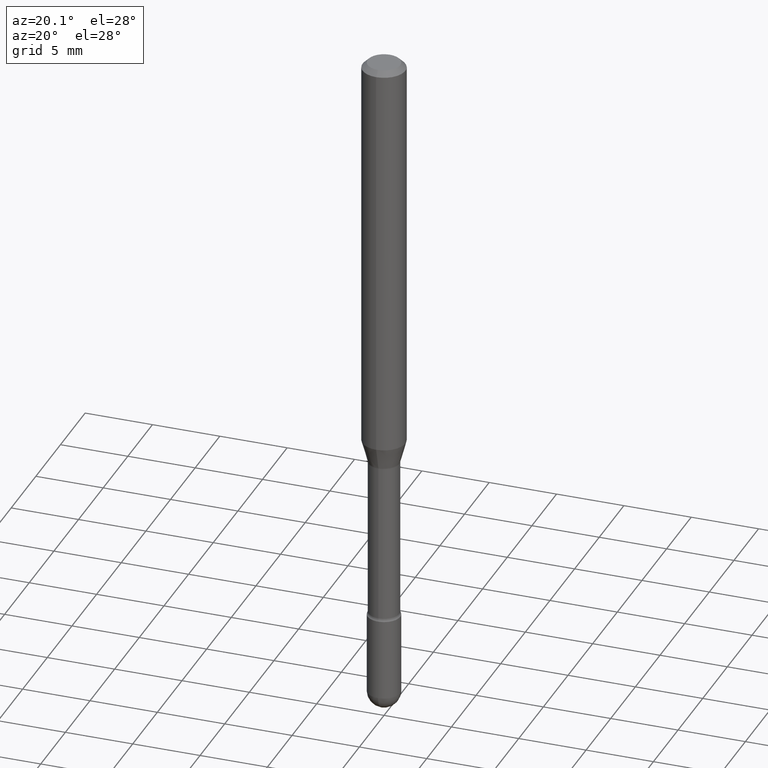
[diagram: clean part render]
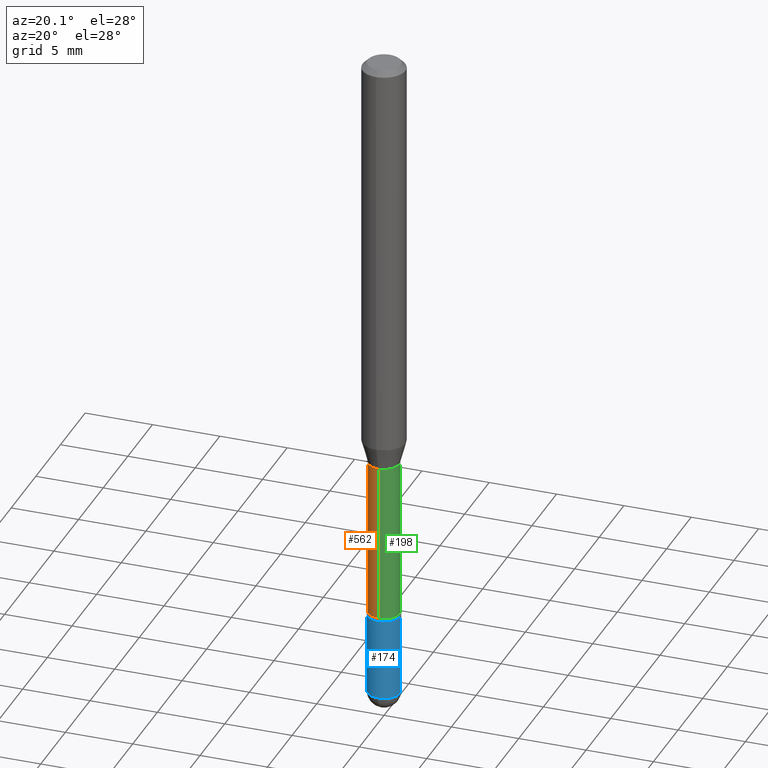
[diagram: same view with three faces highlighted in distinct colors, each labeled with its STEP entity id]
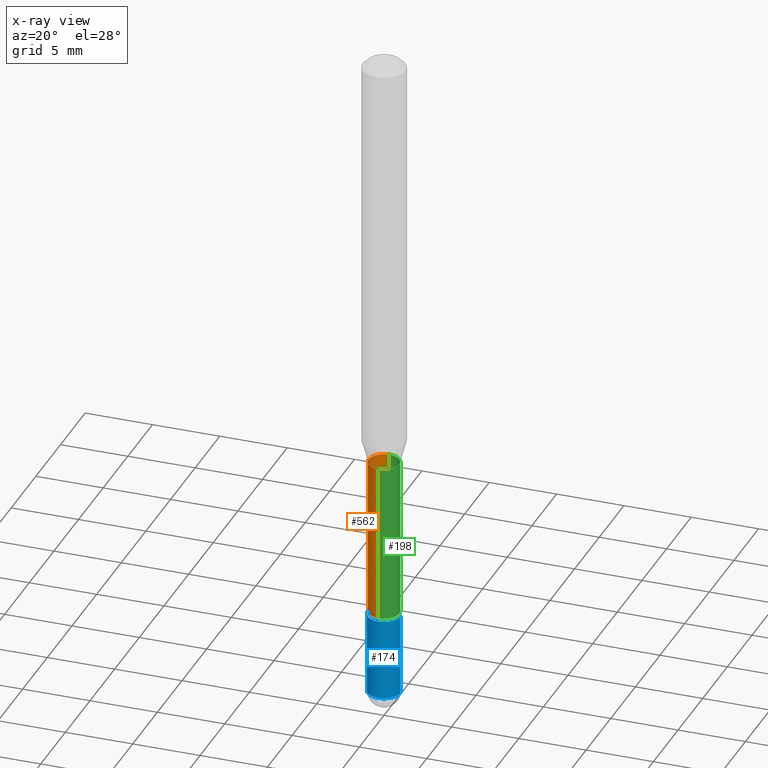
[diagram: x-ray of the same camera — body ghosted, the three highlighted faces saturated]
A machine part, auxiliary view with three faces highlighted in distinct colors.
The next image is the same camera in x-ray (body ghosted, the three faces saturated) — at least one of them is partly hidden behind the body in this view.
Their STEP definitions:

[orange] entity #562 — the highlighted cylindrical surface (edge-blend (fillet) strip) has radius 1.1341 mm, axis along (-0, 0, 1).
#2 = DIRECTION ( 'NONE',  ( -6.982962677686265922E-15, -1.000000000000000000, 3.491509824358550221E-15 ) ) ;
#17 = CARTESIAN_POINT ( 'NONE',  ( -3.117892835586504621E-16, -0.04465000000000601821, -1.706203551853162415 ) ) ;
#55 = DIRECTION ( 'NONE',  ( -6.982962677686265922E-15, -1.000000000000000000, 6.118360568117042054E-15 ) ) ;
#58 = ORIENTED_EDGE ( 'NONE', *, *, #405, .T. ) ;
#60 = CIRCLE ( 'NONE', #163, 0.04465000000000006464 ) ;
#82 = DIRECTION ( 'NONE',  ( -2.445448914856043624E-29, 3.491509824358551010E-15, 1.000000000000000000 ) ) ;
#91 = DIRECTION ( 'NONE',  ( -2.445448914856043344E-29, 3.491509824358551010E-15, 1.000000000000000000 ) ) ;
#98 = CARTESIAN_POINT ( 'NONE',  ( 3.037185896281941653E-29, -4.336367172035518711E-15, -1.241974787463810959 ) ) ;
#101 = VERTEX_POINT ( 'NONE', #258 ) ;
#102 = DIRECTION ( 'NONE',  ( -2.445448914856043624E-29, 3.491509824358551010E-15, 1.000000000000000000 ) ) ;
#123 = CARTESIAN_POINT ( 'NONE',  ( 3.172573315168849457E-16, 0.04465000000000003688, 3.221774852336366388E-16 ) ) ;
#128 = EDGE_CURVE ( 'NONE', #513, #136, #60, .T. ) ;
#136 = VERTEX_POINT ( 'NONE', #17 ) ;
#163 = AXIS2_PLACEMENT_3D ( 'NONE', #292, #102, #55 ) ;
#176 = CYLINDRICAL_SURFACE ( 'NONE', #319, 0.04465000000000003688 ) ;
#229 = DIRECTION ( 'NONE',  ( -2.445448914856043624E-29, 3.491509824358551010E-15, 1.000000000000000000 ) ) ;
#258 = CARTESIAN_POINT ( 'NONE',  ( -3.117892835586614568E-16, -0.04465000000000434593, -1.241974787463810737 ) ) ;
#265 = CARTESIAN_POINT ( 'NONE',  ( 3.172573315169266568E-16, 0.04464999999999567232, -1.241974787463811181 ) ) ;
#292 = CARTESIAN_POINT ( 'NONE',  ( 4.172433624402844054E-29, -5.957226463650771569E-15, -1.706203551853162859 ) ) ;
#299 = VECTOR ( 'NONE', #476, 39.37007874015748143 ) ;
#304 = CARTESIAN_POINT ( 'NONE',  ( 3.273825655015081526E-16, 0.04464999999999410413, -1.706203551853163081 ) ) ;
#318 = CARTESIAN_POINT ( 'NONE',  ( -3.117892835586920252E-16, -0.04465000000000003688, 6.339693125488554876E-16 ) ) ;
#319 = AXIS2_PLACEMENT_3D ( 'NONE', #396, #229, #2 ) ;
#326 = ORIENTED_EDGE ( 'NONE', *, *, #128, .T. ) ;
#347 = DIRECTION ( 'NONE',  ( -6.982962677686265922E-15, -1.000000000000000000, 6.118360568117049942E-15 ) ) ;
#372 = ORIENTED_EDGE ( 'NONE', *, *, #498, .F. ) ;
#389 = FACE_OUTER_BOUND ( 'NONE', #480, .T. ) ;
#396 = CARTESIAN_POINT ( 'NONE',  ( -1.169113584055446105E-44, 1.669184350826100908E-30, 4.780733988912460139E-16 ) ) ;
#397 = VERTEX_POINT ( 'NONE', #265 ) ;
#405 = EDGE_CURVE ( 'NONE', #136, #101, #564, .T. ) ;
#443 = LINE ( 'NONE', #123, #299 ) ;
#449 = AXIS2_PLACEMENT_3D ( 'NONE', #98, #82, #347 ) ;
#476 = DIRECTION ( 'NONE',  ( -2.445448914856043344E-29, 3.491509824358551010E-15, 1.000000000000000000 ) ) ;
#480 = EDGE_LOOP ( 'NONE', ( #527, #326, #58, #372 ) ) ;
#498 = EDGE_CURVE ( 'NONE', #397, #101, #538, .T. ) ;
#512 = VECTOR ( 'NONE', #91, 39.37007874015748143 ) ;
#513 = VERTEX_POINT ( 'NONE', #304 ) ;
#527 = ORIENTED_EDGE ( 'NONE', *, *, #533, .F. ) ;
#533 = EDGE_CURVE ( 'NONE', #513, #397, #443, .T. ) ;
#538 = CIRCLE ( 'NONE', #449, 0.04465000000000000913 ) ;
#562 = ADVANCED_FACE ( 'NONE', ( #389 ), #176, .T. ) ;
#564 = LINE ( 'NONE', #318, #512 ) ;

[blue] entity #174 — the highlighted cylindrical surface (edge-blend (fillet) strip) has radius 1.2065 mm, axis along (-0, 0, 1).
#11 = DIRECTION ( 'NONE',  ( -2.445468806185136597E-29, 3.491481338843145583E-15, 1.000000000000000000 ) ) ;
#13 = VERTEX_POINT ( 'NONE', #221 ) ;
#14 = EDGE_CURVE ( 'NONE', #293, #132, #387, .T. ) ;
#26 = AXIS2_PLACEMENT_3D ( 'NONE', #232, #39, #223 ) ;
#39 = DIRECTION ( 'NONE',  ( -2.445468806185136597E-29, 3.491481338843145583E-15, 1.000000000000000000 ) ) ;
#41 = ORIENTED_EDGE ( 'NONE', *, *, #300, .T. ) ;
#47 = AXIS2_PLACEMENT_3D ( 'NONE', #490, #56, #556 ) ;
#56 = DIRECTION ( 'NONE',  ( -2.445468806185136597E-29, 3.491481338843145583E-15, 1.000000000000000000 ) ) ;
#72 = EDGE_CURVE ( 'NONE', #293, #280, #220, .T. ) ;
#77 = CARTESIAN_POINT ( 'NONE',  ( 0.04750000000000000749, -3.316907271900977082E-16, 2.316183968503069432E-30 ) ) ;
#78 = VECTOR ( 'NONE', #434, 39.37007874015748143 ) ;
#132 = VERTEX_POINT ( 'NONE', #282 ) ;
#174 = ADVANCED_FACE ( 'NONE', ( #548 ), #285, .T. ) ;
#177 = ORIENTED_EDGE ( 'NONE', *, *, #218, .F. ) ;
#179 = CARTESIAN_POINT ( 'NONE',  ( -0.04750000000000000749, -6.064996105617570464E-15, -1.952499999999999902 ) ) ;
#195 = CARTESIAN_POINT ( 'NONE',  ( 0.04749999999999999362, -6.319581223306092199E-15, -1.715000000000000080 ) ) ;
#203 = DIRECTION ( 'NONE',  ( 1.000000000000000000, -6.982962677686266711E-15, 4.876176775795934672E-29 ) ) ;
#218 = EDGE_CURVE ( 'NONE', #132, #464, #554, .T. ) ;
#220 = CIRCLE ( 'NONE', #47, 0.04750000000000000749 ) ;
#221 = CARTESIAN_POINT ( 'NONE',  ( 0.04750000000000000749, -6.734194632293715468E-15, -1.952499999999999902 ) ) ;
#223 = DIRECTION ( 'NONE',  ( 1.000000000000000000, -6.982962677686260400E-15, 0.000000000000000000 ) ) ;
#227 = CARTESIAN_POINT ( 'NONE',  ( -3.375077994859997675E-16, -0.04750000000000682149, -1.952499999999999680 ) ) ;
#232 = CARTESIAN_POINT ( 'NONE',  ( 4.774777844076478914E-29, -6.817117314091241226E-15, -1.952499999999999902 ) ) ;
#280 = VERTEX_POINT ( 'NONE', #227 ) ;
#282 = CARTESIAN_POINT ( 'NONE',  ( -0.04749999999999999362, -6.064996105617570464E-15, -1.715000000000000080 ) ) ;
#285 = CYLINDRICAL_SURFACE ( 'NONE', #481, 0.04750000000000000749 ) ;
#293 = VERTEX_POINT ( 'NONE', #179 ) ;
#300 = EDGE_CURVE ( 'NONE', #13, #464, #307, .T. ) ;
#307 = LINE ( 'NONE', #77, #78 ) ;
#316 = DIRECTION ( 'NONE',  ( -2.445468806185136877E-29, 3.491481338843145188E-15, 1.000000000000000000 ) ) ;
#331 = AXIS2_PLACEMENT_3D ( 'NONE', #492, #11, #496 ) ;
#363 = CARTESIAN_POINT ( 'NONE',  ( 0.000000000000000000, 0.000000000000000000, 0.000000000000000000 ) ) ;
#387 = LINE ( 'NONE', #524, #473 ) ;
#406 = EDGE_CURVE ( 'NONE', #280, #13, #424, .T. ) ;
#420 = DIRECTION ( 'NONE',  ( -2.445468806185136597E-29, 3.491481338843145583E-15, 1.000000000000000000 ) ) ;
#424 = CIRCLE ( 'NONE', #26, 0.04750000000000000749 ) ;
#434 = DIRECTION ( 'NONE',  ( -2.445468806185136877E-29, 3.491481338843145188E-15, 1.000000000000000000 ) ) ;
#450 = ORIENTED_EDGE ( 'NONE', *, *, #14, .F. ) ;
#464 = VERTEX_POINT ( 'NONE', #195 ) ;
#471 = ORIENTED_EDGE ( 'NONE', *, *, #72, .T. ) ;
#473 = VECTOR ( 'NONE', #316, 39.37007874015748143 ) ;
#477 = EDGE_LOOP ( 'NONE', ( #450, #471, #483, #41, #177 ) ) ;
#481 = AXIS2_PLACEMENT_3D ( 'NONE', #363, #420, #203 ) ;
#483 = ORIENTED_EDGE ( 'NONE', *, *, #406, .T. ) ;
#490 = CARTESIAN_POINT ( 'NONE',  ( 4.774777844076478914E-29, -6.817117314091241226E-15, -1.952499999999999902 ) ) ;
#492 = CARTESIAN_POINT ( 'NONE',  ( 4.193979002607509757E-29, -5.987890496115994688E-15, -1.715000000000000080 ) ) ;
#496 = DIRECTION ( 'NONE',  ( 1.000000000000000000, -6.982962677686261977E-15, 0.000000000000000000 ) ) ;
#524 = CARTESIAN_POINT ( 'NONE',  ( -0.04750000000000000749, 3.375077994860476415E-16, -2.336494167871080260E-30 ) ) ;
#548 = FACE_OUTER_BOUND ( 'NONE', #477, .T. ) ;
#554 = CIRCLE ( 'NONE', #331, 0.04749999999999999362 ) ;
#556 = DIRECTION ( 'NONE',  ( 1.000000000000000000, -6.982962677686260400E-15, 0.000000000000000000 ) ) ;

[green] entity #198 — the highlighted cylindrical surface (edge-blend (fillet) strip) has radius 1.1341 mm, axis along (-0, 0, 1).
#17 = CARTESIAN_POINT ( 'NONE',  ( -3.117892835586504621E-16, -0.04465000000000601821, -1.706203551853162415 ) ) ;
#32 = EDGE_CURVE ( 'NONE', #101, #397, #430, .T. ) ;
#53 = CARTESIAN_POINT ( 'NONE',  ( 4.172433624402844054E-29, -5.957226463650771569E-15, -1.706203551853162859 ) ) ;
#91 = DIRECTION ( 'NONE',  ( -2.445448914856043344E-29, 3.491509824358551010E-15, 1.000000000000000000 ) ) ;
#92 = ORIENTED_EDGE ( 'NONE', *, *, #352, .T. ) ;
#101 = VERTEX_POINT ( 'NONE', #258 ) ;
#123 = CARTESIAN_POINT ( 'NONE',  ( 3.172573315168849457E-16, 0.04465000000000003688, 3.221774852336366388E-16 ) ) ;
#124 = ORIENTED_EDGE ( 'NONE', *, *, #405, .F. ) ;
#136 = VERTEX_POINT ( 'NONE', #17 ) ;
#140 = ORIENTED_EDGE ( 'NONE', *, *, #533, .T. ) ;
#184 = AXIS2_PLACEMENT_3D ( 'NONE', #346, #400, #188 ) ;
#188 = DIRECTION ( 'NONE',  ( -6.982962677686265922E-15, -1.000000000000000000, 6.118360568117049942E-15 ) ) ;
#198 = ADVANCED_FACE ( 'NONE', ( #368 ), #545, .T. ) ;
#258 = CARTESIAN_POINT ( 'NONE',  ( -3.117892835586614568E-16, -0.04465000000000434593, -1.241974787463810737 ) ) ;
#265 = CARTESIAN_POINT ( 'NONE',  ( 3.172573315169266568E-16, 0.04464999999999567232, -1.241974787463811181 ) ) ;
#275 = AXIS2_PLACEMENT_3D ( 'NONE', #53, #532, #455 ) ;
#299 = VECTOR ( 'NONE', #476, 39.37007874015748143 ) ;
#304 = CARTESIAN_POINT ( 'NONE',  ( 3.273825655015081526E-16, 0.04464999999999410413, -1.706203551853163081 ) ) ;
#318 = CARTESIAN_POINT ( 'NONE',  ( -3.117892835586920252E-16, -0.04465000000000003688, 6.339693125488554876E-16 ) ) ;
#329 = CARTESIAN_POINT ( 'NONE',  ( -1.169113584055446105E-44, 1.669184350826100908E-30, 4.780733988912460139E-16 ) ) ;
#346 = CARTESIAN_POINT ( 'NONE',  ( 3.037185896281941653E-29, -4.336367172035518711E-15, -1.241974787463810959 ) ) ;
#352 = EDGE_CURVE ( 'NONE', #136, #513, #414, .T. ) ;
#362 = AXIS2_PLACEMENT_3D ( 'NONE', #329, #502, #380 ) ;
#368 = FACE_OUTER_BOUND ( 'NONE', #439, .T. ) ;
#380 = DIRECTION ( 'NONE',  ( -6.982962677686265922E-15, -1.000000000000000000, 3.491509824358550221E-15 ) ) ;
#397 = VERTEX_POINT ( 'NONE', #265 ) ;
#400 = DIRECTION ( 'NONE',  ( -2.445448914856043624E-29, 3.491509824358551010E-15, 1.000000000000000000 ) ) ;
#405 = EDGE_CURVE ( 'NONE', #136, #101, #564, .T. ) ;
#414 = CIRCLE ( 'NONE', #275, 0.04465000000000006464 ) ;
#430 = CIRCLE ( 'NONE', #184, 0.04465000000000000913 ) ;
#439 = EDGE_LOOP ( 'NONE', ( #92, #140, #540, #124 ) ) ;
#443 = LINE ( 'NONE', #123, #299 ) ;
#455 = DIRECTION ( 'NONE',  ( -6.982962677686265922E-15, -1.000000000000000000, 6.118360568117042054E-15 ) ) ;
#476 = DIRECTION ( 'NONE',  ( -2.445448914856043344E-29, 3.491509824358551010E-15, 1.000000000000000000 ) ) ;
#502 = DIRECTION ( 'NONE',  ( -2.445448914856043624E-29, 3.491509824358551010E-15, 1.000000000000000000 ) ) ;
#512 = VECTOR ( 'NONE', #91, 39.37007874015748143 ) ;
#513 = VERTEX_POINT ( 'NONE', #304 ) ;
#532 = DIRECTION ( 'NONE',  ( -2.445448914856043624E-29, 3.491509824358551010E-15, 1.000000000000000000 ) ) ;
#533 = EDGE_CURVE ( 'NONE', #513, #397, #443, .T. ) ;
#540 = ORIENTED_EDGE ( 'NONE', *, *, #32, .F. ) ;
#545 = CYLINDRICAL_SURFACE ( 'NONE', #362, 0.04465000000000003688 ) ;
#564 = LINE ( 'NONE', #318, #512 ) ;